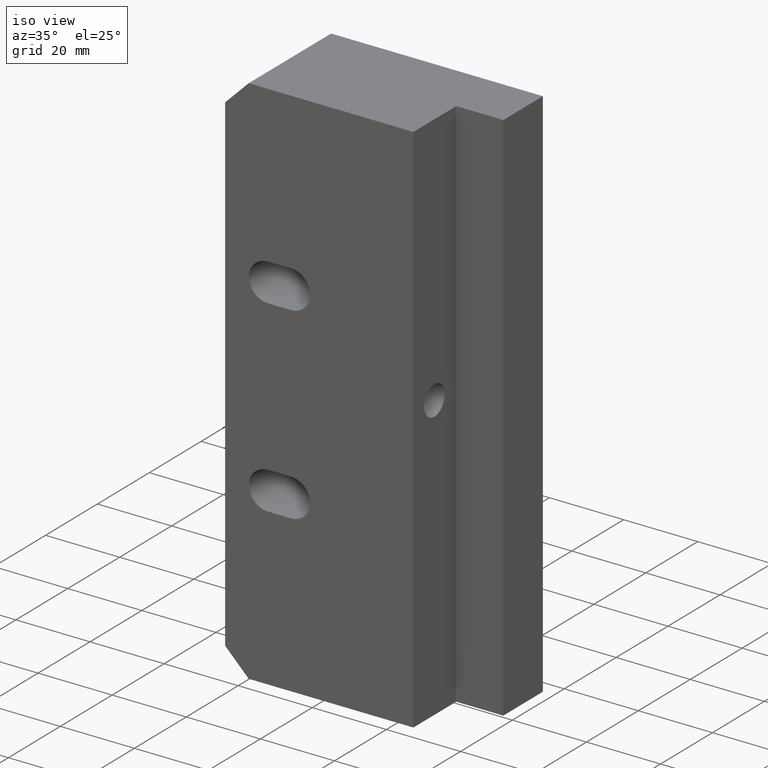
[diagram: clean part render]
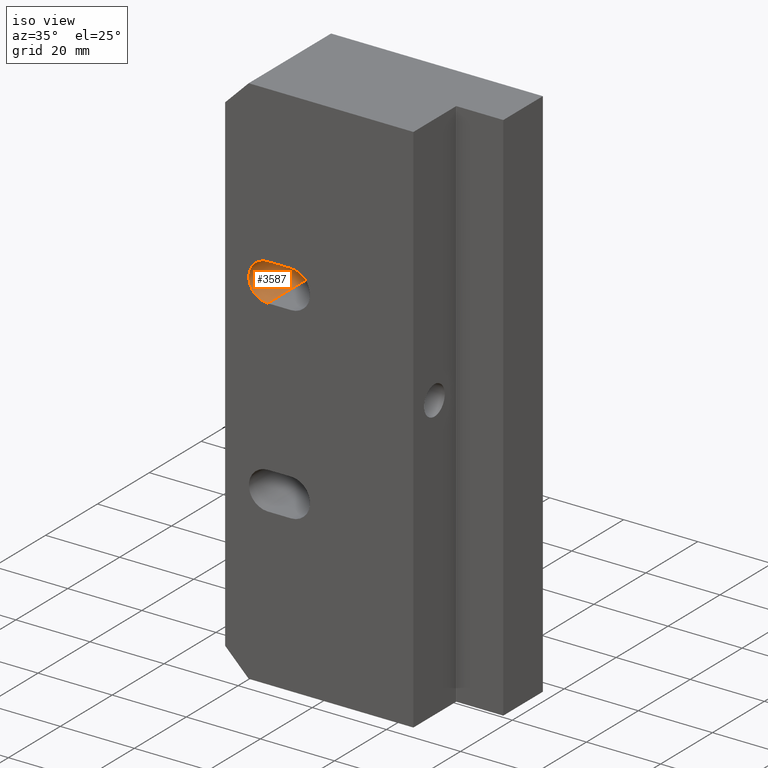
[diagram: same view with one face highlighted and labeled with its STEP entity id]
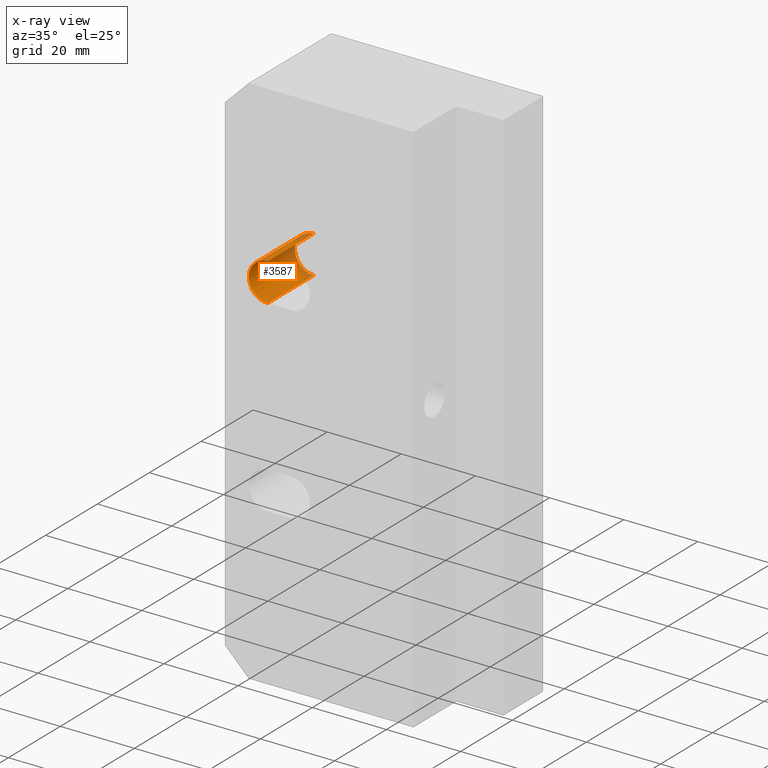
[diagram: x-ray of the same camera — body ghosted, the highlighted face saturated]
A machine part, iso view. The second image highlights one B-rep face of the part: STEP entity #3587.
The next image is the same camera in x-ray: the body ghosted, the highlighted face saturated — about 20% of this face is hidden behind the body in this view.
In plain terms, the highlighted cylindrical surface (edge-blend (fillet) strip) has radius 5.08 mm, axis along (-0, -1, -0).
Its self-contained STEP definition (entity closure, byte-faithful):
#18 = DIRECTION ( 'NONE',  ( -0.0000000000000000000, -1.000000000000000000, -0.0000000000000000000 ) ) ;
#26 = VECTOR ( 'NONE', #18, 39.37007874015748100 ) ;
#199 = AXIS2_PLACEMENT_3D ( 'NONE', #3077, #1083, #3405 ) ;
#258 = VERTEX_POINT ( 'NONE', #2504 ) ;
#293 = CARTESIAN_POINT ( 'NONE',  ( -2.048734939028663800, 0.7000000000000000700, -2.058999999999445100 ) ) ;
#304 = CARTESIAN_POINT ( 'NONE',  ( -2.048734939028663800, 0.7000000000000000700, -1.858999999999444900 ) ) ;
#516 = CARTESIAN_POINT ( 'NONE',  ( -2.048734939028663800, 0.7000000000000000700, -1.858999999999444900 ) ) ;
#619 = DIRECTION ( 'NONE',  ( -0.0000000000000000000, -1.000000000000000000, -0.0000000000000000000 ) ) ;
#637 = DIRECTION ( 'NONE',  ( 0.0000000000000000000, 0.0000000000000000000, -1.000000000000000000 ) ) ;
#876 = FACE_OUTER_BOUND ( 'NONE', #2691, .T. ) ;
#1020 = EDGE_CURVE ( 'NONE', #258, #2036, #1319, .T. ) ;
#1083 = DIRECTION ( 'NONE',  ( 0.0000000000000000000, -1.000000000000000000, 0.0000000000000000000 ) ) ;
#1319 = CIRCLE ( 'NONE', #199, 0.2000000000000000400 ) ;
#1397 = CARTESIAN_POINT ( 'NONE',  ( -2.048734939028663800, 0.0000000000000000000, -2.058999999999445100 ) ) ;
#1774 = EDGE_CURVE ( 'NONE', #3344, #258, #2672, .T. ) ;
#2036 = VERTEX_POINT ( 'NONE', #1397 ) ;
#2231 = VECTOR ( 'NONE', #619, 39.37007874015748100 ) ;
#2299 = EDGE_CURVE ( 'NONE', #2642, #2036, #3225, .T. ) ;
#2348 = CARTESIAN_POINT ( 'NONE',  ( -2.048734939028663800, 0.7000000000000000700, -1.658999999999444900 ) ) ;
#2389 = ORIENTED_EDGE ( 'NONE', *, *, #1774, .T. ) ;
#2504 = CARTESIAN_POINT ( 'NONE',  ( -2.048734939028663800, -0.0000000000000000000, -1.658999999999444900 ) ) ;
#2538 = CYLINDRICAL_SURFACE ( 'NONE', #2548, 0.2000000000000000400 ) ;
#2546 = ORIENTED_EDGE ( 'NONE', *, *, #3771, .F. ) ;
#2548 = AXIS2_PLACEMENT_3D ( 'NONE', #516, #3498, #3814 ) ;
#2617 = DIRECTION ( 'NONE',  ( 0.0000000000000000000, -1.000000000000000000, 0.0000000000000000000 ) ) ;
#2642 = VERTEX_POINT ( 'NONE', #3443 ) ;
#2672 = LINE ( 'NONE', #3983, #26 ) ;
#2691 = EDGE_LOOP ( 'NONE', ( #3773, #3761, #2546, #2389 ) ) ;
#2991 = AXIS2_PLACEMENT_3D ( 'NONE', #304, #2617, #637 ) ;
#3077 = CARTESIAN_POINT ( 'NONE',  ( -2.048734939028663800, -0.0000000000000000000, -1.858999999999444900 ) ) ;
#3225 = LINE ( 'NONE', #293, #2231 ) ;
#3344 = VERTEX_POINT ( 'NONE', #2348 ) ;
#3405 = DIRECTION ( 'NONE',  ( 0.0000000000000000000, 0.0000000000000000000, -1.000000000000000000 ) ) ;
#3443 = CARTESIAN_POINT ( 'NONE',  ( -2.048734939028663800, 0.7000000000000000700, -2.058999999999445100 ) ) ;
#3498 = DIRECTION ( 'NONE',  ( -0.0000000000000000000, -1.000000000000000000, -0.0000000000000000000 ) ) ;
#3577 = CIRCLE ( 'NONE', #2991, 0.2000000000000000400 ) ;
#3587 = ADVANCED_FACE ( 'NONE', ( #876 ), #2538, .F. ) ;
#3761 = ORIENTED_EDGE ( 'NONE', *, *, #2299, .F. ) ;
#3771 = EDGE_CURVE ( 'NONE', #3344, #2642, #3577, .T. ) ;
#3773 = ORIENTED_EDGE ( 'NONE', *, *, #1020, .T. ) ;
#3814 = DIRECTION ( 'NONE',  ( 0.0000000000000000000, 0.0000000000000000000, -1.000000000000000000 ) ) ;
#3983 = CARTESIAN_POINT ( 'NONE',  ( -2.048734939028663800, 0.7000000000000000700, -1.658999999999444900 ) ) ;